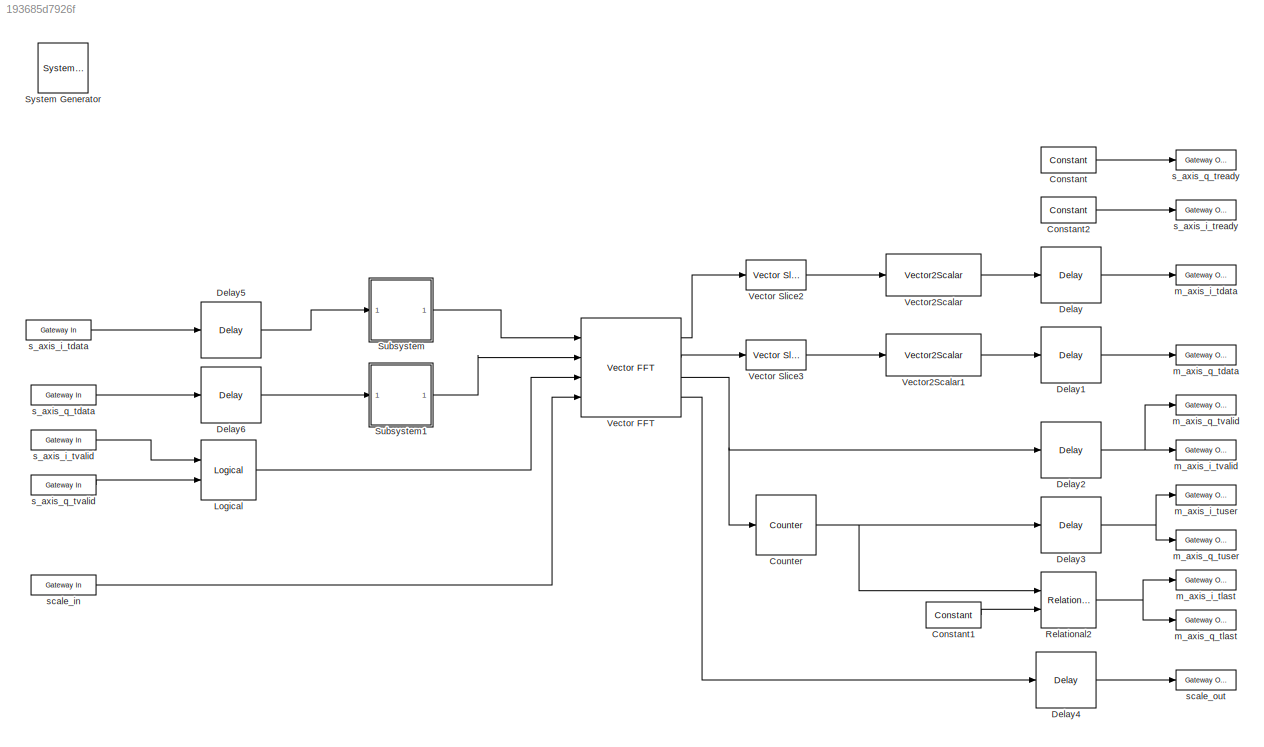
MODEL slx_193685d7926f
KIND model
CONFIG AbsTol = auto
CONFIG EnableMultiTasking = off
CONFIG FixedStep = auto
CONFIG MaxStep = auto
CONFIG MinStep = auto
CONFIG RelTol = 1e-3
CONFIG SampleTimeConstraint = Unconstrained
CONFIG Solver = VariableStepAuto
CONFIG SolverName = VariableStepAuto
CONFIG StartTime = 0.0
CONFIG StopTime = 10.0
BLOCK [Reference]  System Generator  REF=xbsIndex_r4/ System Generator
  AttributesFormatString = System\nGenerator
  Ports = []
  SourceBlock = xbsIndex_r4/ System Generator
  SourceType = Xilinx System Generator Block
  Tag = genX
  UserDataPersistent = on
BLOCK [Reference] Constant  REF=xbsIndex_r4/Constant
  Ports = [0, 1]
  SourceBlock = xbsIndex_r4/Constant
  SourceType = Xilinx Constant Block Block
BLOCK [Reference] Constant1  REF=xbsIndex_r4/Constant
  Ports = [0, 1]
  SourceBlock = xbsIndex_r4/Constant
  SourceType = Xilinx Constant Block Block
BLOCK [Reference] Constant2  REF=xbsIndex_r4/Constant
  Ports = [0, 1]
  SourceBlock = xbsIndex_r4/Constant
  SourceType = Xilinx Constant Block Block
BLOCK [Reference] Counter  REF=xbsIndex_r4/Counter
  Ports = [1, 1]
  SourceBlock = xbsIndex_r4/Counter
  SourceType = Xilinx Counter Block
BLOCK [Reference] Delay  REF=xbsIndex_r4/Delay
  Ports = [1, 1]
  SourceBlock = xbsIndex_r4/Delay
  SourceType = Xilinx Delay Block
BLOCK [Reference] Delay1  REF=xbsIndex_r4/Delay
  Ports = [1, 1]
  SourceBlock = xbsIndex_r4/Delay
  SourceType = Xilinx Delay Block
BLOCK [Reference] Delay2  REF=xbsIndex_r4/Delay
  Ports = [1, 1]
  SourceBlock = xbsIndex_r4/Delay
  SourceType = Xilinx Delay Block
BLOCK [Reference] Delay3  REF=xbsIndex_r4/Delay
  Ports = [1, 1]
  SourceBlock = xbsIndex_r4/Delay
  SourceType = Xilinx Delay Block
BLOCK [Reference] Delay4  REF=xbsIndex_r4/Delay
  Ports = [1, 1]
  SourceBlock = xbsIndex_r4/Delay
  SourceType = Xilinx Delay Block
BLOCK [Reference] Delay5  REF=xbsIndex_r4/Delay
  Ports = [1, 1]
  SourceBlock = xbsIndex_r4/Delay
  SourceType = Xilinx Delay Block
BLOCK [Reference] Delay6  REF=xbsIndex_r4/Delay
  Ports = [1, 1]
  SourceBlock = xbsIndex_r4/Delay
  SourceType = Xilinx Delay Block
BLOCK [Reference] Logical  REF=xbsIndex_r4/Logical
  Ports = [2, 1]
  SourceBlock = xbsIndex_r4/Logical
  SourceType = Xilinx Logical Block Block
BLOCK [Reference] Relational2  REF=xbsIndex_r4/Relational
  Ports = [2, 1]
  SourceBlock = xbsIndex_r4/Relational
  SourceType = Xilinx Arithmetic Relational Operator Block
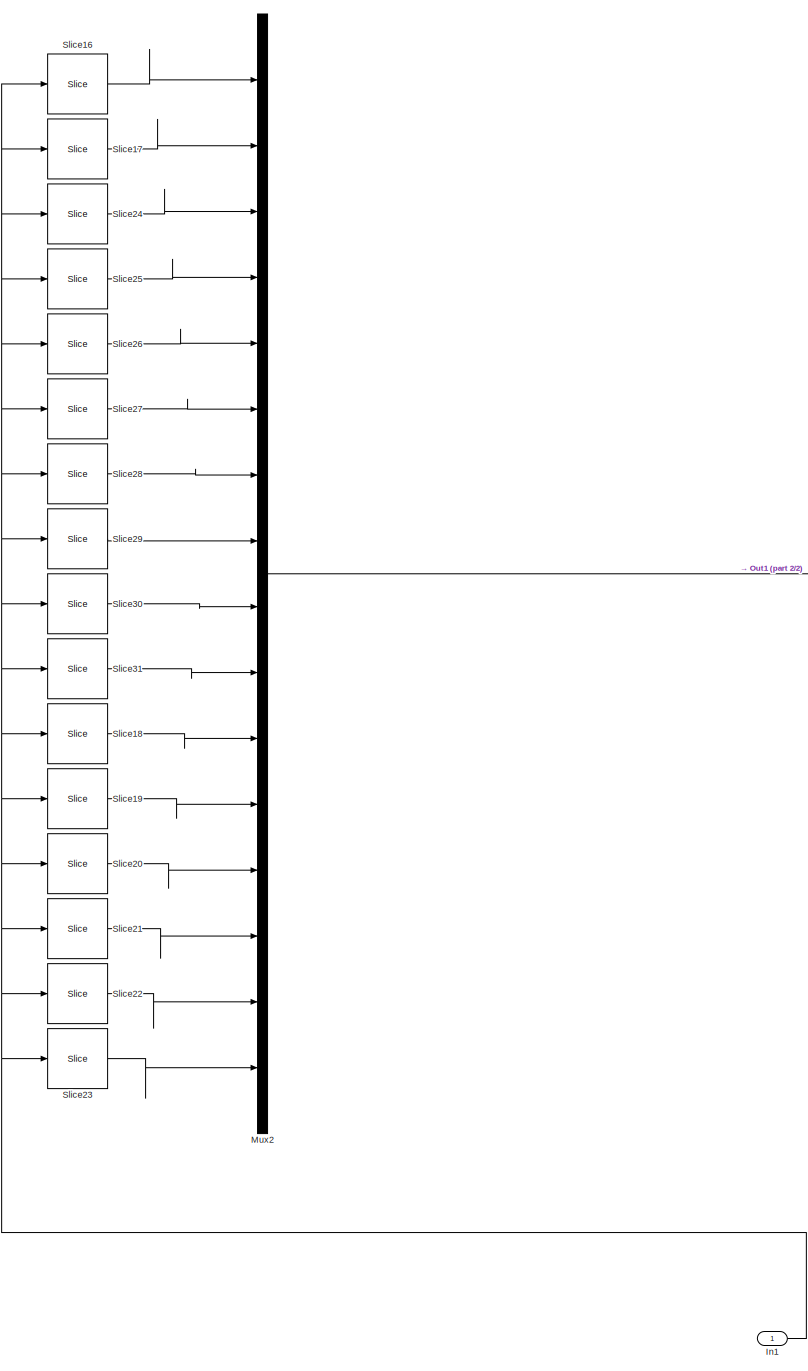
[diagram: Subsystem - part 1/2, center side, full height]
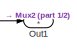
[diagram: Subsystem - part 2/2, bottom right region]
BLOCK [SubSystem] Subsystem
  Ports = [1, 1]
  RequestExecContextInheritance = off
BLOCK [Inport] Subsystem/In1
  IconDisplay = Port number
BLOCK [Mux] Subsystem/Mux2
  DisplayOption = bar
  Inputs = 16
  Ports = [16, 1]
BLOCK [Outport] Subsystem/Out1
  IconDisplay = Port number
BLOCK [Reference] Subsystem/Slice16  REF=xbsIndex_r4/Slice
  Ports = [1, 1]
  SourceBlock = xbsIndex_r4/Slice
  SourceType = Xilinx Bit Slice Extractor Block
BLOCK [Reference] Subsystem/Slice17  REF=xbsIndex_r4/Slice
  Ports = [1, 1]
  SourceBlock = xbsIndex_r4/Slice
  SourceType = Xilinx Bit Slice Extractor Block
BLOCK [Reference] Subsystem/Slice18  REF=xbsIndex_r4/Slice
  Ports = [1, 1]
  SourceBlock = xbsIndex_r4/Slice
  SourceType = Xilinx Bit Slice Extractor Block
BLOCK [Reference] Subsystem/Slice19  REF=xbsIndex_r4/Slice
  Ports = [1, 1]
  SourceBlock = xbsIndex_r4/Slice
  SourceType = Xilinx Bit Slice Extractor Block
BLOCK [Reference] Subsystem/Slice20  REF=xbsIndex_r4/Slice
  Ports = [1, 1]
  SourceBlock = xbsIndex_r4/Slice
  SourceType = Xilinx Bit Slice Extractor Block
BLOCK [Reference] Subsystem/Slice21  REF=xbsIndex_r4/Slice
  Ports = [1, 1]
  SourceBlock = xbsIndex_r4/Slice
  SourceType = Xilinx Bit Slice Extractor Block
BLOCK [Reference] Subsystem/Slice22  REF=xbsIndex_r4/Slice
  Ports = [1, 1]
  SourceBlock = xbsIndex_r4/Slice
  SourceType = Xilinx Bit Slice Extractor Block
BLOCK [Reference] Subsystem/Slice23  REF=xbsIndex_r4/Slice
  Ports = [1, 1]
  SourceBlock = xbsIndex_r4/Slice
  SourceType = Xilinx Bit Slice Extractor Block
BLOCK [Reference] Subsystem/Slice24  REF=xbsIndex_r4/Slice
  Ports = [1, 1]
  SourceBlock = xbsIndex_r4/Slice
  SourceType = Xilinx Bit Slice Extractor Block
BLOCK [Reference] Subsystem/Slice25  REF=xbsIndex_r4/Slice
  Ports = [1, 1]
  SourceBlock = xbsIndex_r4/Slice
  SourceType = Xilinx Bit Slice Extractor Block
BLOCK [Reference] Subsystem/Slice26  REF=xbsIndex_r4/Slice
  Ports = [1, 1]
  SourceBlock = xbsIndex_r4/Slice
  SourceType = Xilinx Bit Slice Extractor Block
BLOCK [Reference] Subsystem/Slice27  REF=xbsIndex_r4/Slice
  Ports = [1, 1]
  SourceBlock = xbsIndex_r4/Slice
  SourceType = Xilinx Bit Slice Extractor Block
BLOCK [Reference] Subsystem/Slice28  REF=xbsIndex_r4/Slice
  Ports = [1, 1]
  SourceBlock = xbsIndex_r4/Slice
  SourceType = Xilinx Bit Slice Extractor Block
BLOCK [Reference] Subsystem/Slice29  REF=xbsIndex_r4/Slice
  Ports = [1, 1]
  SourceBlock = xbsIndex_r4/Slice
  SourceType = Xilinx Bit Slice Extractor Block
BLOCK [Reference] Subsystem/Slice30  REF=xbsIndex_r4/Slice
  Ports = [1, 1]
  SourceBlock = xbsIndex_r4/Slice
  SourceType = Xilinx Bit Slice Extractor Block
BLOCK [Reference] Subsystem/Slice31  REF=xbsIndex_r4/Slice
  Ports = [1, 1]
  SourceBlock = xbsIndex_r4/Slice
  SourceType = Xilinx Bit Slice Extractor Block
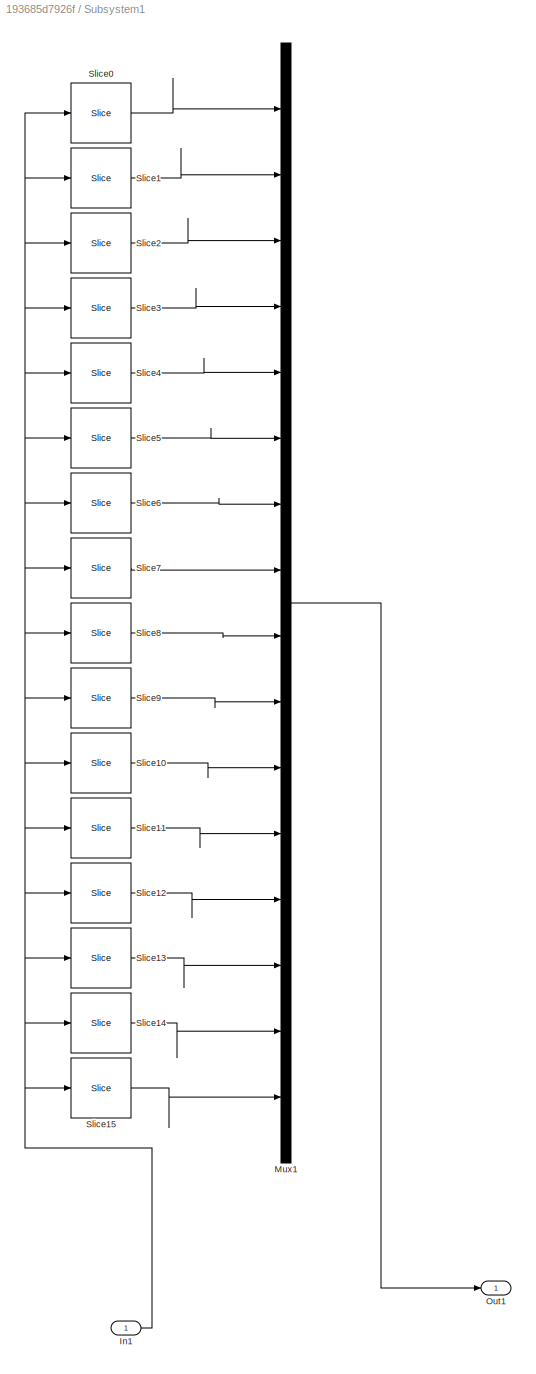
BLOCK [SubSystem] Subsystem1
  Ports = [1, 1]
  RequestExecContextInheritance = off
BLOCK [Inport] Subsystem1/In1
  IconDisplay = Port number
BLOCK [Mux] Subsystem1/Mux1
  DisplayOption = bar
  Inputs = 16
  Ports = [16, 1]
BLOCK [Outport] Subsystem1/Out1
  IconDisplay = Port number
BLOCK [Reference] Subsystem1/Slice0  REF=xbsIndex_r4/Slice
  Ports = [1, 1]
  SourceBlock = xbsIndex_r4/Slice
  SourceType = Xilinx Bit Slice Extractor Block
BLOCK [Reference] Subsystem1/Slice1  REF=xbsIndex_r4/Slice
  Ports = [1, 1]
  SourceBlock = xbsIndex_r4/Slice
  SourceType = Xilinx Bit Slice Extractor Block
BLOCK [Reference] Subsystem1/Slice10  REF=xbsIndex_r4/Slice
  Ports = [1, 1]
  SourceBlock = xbsIndex_r4/Slice
  SourceType = Xilinx Bit Slice Extractor Block
BLOCK [Reference] Subsystem1/Slice11  REF=xbsIndex_r4/Slice
  Ports = [1, 1]
  SourceBlock = xbsIndex_r4/Slice
  SourceType = Xilinx Bit Slice Extractor Block
BLOCK [Reference] Subsystem1/Slice12  REF=xbsIndex_r4/Slice
  Ports = [1, 1]
  SourceBlock = xbsIndex_r4/Slice
  SourceType = Xilinx Bit Slice Extractor Block
BLOCK [Reference] Subsystem1/Slice13  REF=xbsIndex_r4/Slice
  Ports = [1, 1]
  SourceBlock = xbsIndex_r4/Slice
  SourceType = Xilinx Bit Slice Extractor Block
BLOCK [Reference] Subsystem1/Slice14  REF=xbsIndex_r4/Slice
  Ports = [1, 1]
  SourceBlock = xbsIndex_r4/Slice
  SourceType = Xilinx Bit Slice Extractor Block
BLOCK [Reference] Subsystem1/Slice15  REF=xbsIndex_r4/Slice
  Ports = [1, 1]
  SourceBlock = xbsIndex_r4/Slice
  SourceType = Xilinx Bit Slice Extractor Block
BLOCK [Reference] Subsystem1/Slice2  REF=xbsIndex_r4/Slice
  Ports = [1, 1]
  SourceBlock = xbsIndex_r4/Slice
  SourceType = Xilinx Bit Slice Extractor Block
BLOCK [Reference] Subsystem1/Slice3  REF=xbsIndex_r4/Slice
  Ports = [1, 1]
  SourceBlock = xbsIndex_r4/Slice
  SourceType = Xilinx Bit Slice Extractor Block
BLOCK [Reference] Subsystem1/Slice4  REF=xbsIndex_r4/Slice
  Ports = [1, 1]
  SourceBlock = xbsIndex_r4/Slice
  SourceType = Xilinx Bit Slice Extractor Block
BLOCK [Reference] Subsystem1/Slice5  REF=xbsIndex_r4/Slice
  Ports = [1, 1]
  SourceBlock = xbsIndex_r4/Slice
  SourceType = Xilinx Bit Slice Extractor Block
BLOCK [Reference] Subsystem1/Slice6  REF=xbsIndex_r4/Slice
  Ports = [1, 1]
  SourceBlock = xbsIndex_r4/Slice
  SourceType = Xilinx Bit Slice Extractor Block
BLOCK [Reference] Subsystem1/Slice7  REF=xbsIndex_r4/Slice
  Ports = [1, 1]
  SourceBlock = xbsIndex_r4/Slice
  SourceType = Xilinx Bit Slice Extractor Block
BLOCK [Reference] Subsystem1/Slice8  REF=xbsIndex_r4/Slice
  Ports = [1, 1]
  SourceBlock = xbsIndex_r4/Slice
  SourceType = Xilinx Bit Slice Extractor Block
BLOCK [Reference] Subsystem1/Slice9  REF=xbsIndex_r4/Slice
  Ports = [1, 1]
  SourceBlock = xbsIndex_r4/Slice
  SourceType = Xilinx Bit Slice Extractor Block
BLOCK [Reference] Vector FFT  REF=xrbsSSR_Library/Vector FFT
  Ports = [4, 4]
  SourceBlock = xrbsSSR_Library/Vector FFT
  SourceProductName = Xilinx SSR Blockset
  SourceType = Xilinx Vector FFT Block
BLOCK [Reference] Vector Slice2  REF=xrbsSSR_Library/Vector Slice
  Ports = [1, 1]
  SourceBlock = xrbsSSR_Library/Vector Slice
  SourceProductName = Xilinx SSR Blockset
  SourceType = Xilinx Vector Bit Slice Extractor Block
BLOCK [Reference] Vector Slice3  REF=xrbsSSR_Library/Vector Slice
  Ports = [1, 1]
  SourceBlock = xrbsSSR_Library/Vector Slice
  SourceProductName = Xilinx SSR Blockset
  SourceType = Xilinx Vector Bit Slice Extractor Block
BLOCK [Reference] Vector2Scalar  REF=xrbsSSR_Library/Vector2Scalar
  Ports = [1, 1]
  SourceBlock = xrbsSSR_Library/Vector2Scalar
  SourceProductName = Xilinx SSR Blockset
  SourceType = Xilinx Vector2Scalar Block
BLOCK [Reference] Vector2Scalar1  REF=xrbsSSR_Library/Vector2Scalar
  Ports = [1, 1]
  SourceBlock = xrbsSSR_Library/Vector2Scalar
  SourceProductName = Xilinx SSR Blockset
  SourceType = Xilinx Vector2Scalar Block
BLOCK [Reference] m_axis_i_tdata  REF=xbsIndex_r4/Gateway Out
  Ports = [1, 1]
  SourceBlock = xbsIndex_r4/Gateway Out
  SourceType = Xilinx Gateway Out Block
BLOCK [Reference] m_axis_i_tlast  REF=xbsIndex_r4/Gateway Out
  Ports = [1, 1]
  SourceBlock = xbsIndex_r4/Gateway Out
  SourceType = Xilinx Gateway Out Block
BLOCK [Reference] m_axis_i_tuser  REF=xbsIndex_r4/Gateway Out
  Ports = [1, 1]
  SourceBlock = xbsIndex_r4/Gateway Out
  SourceType = Xilinx Gateway Out Block
BLOCK [Reference] m_axis_i_tvalid  REF=xbsIndex_r4/Gateway Out
  Ports = [1, 1]
  SourceBlock = xbsIndex_r4/Gateway Out
  SourceType = Xilinx Gateway Out Block
BLOCK [Reference] m_axis_q_tdata  REF=xbsIndex_r4/Gateway Out
  Ports = [1, 1]
  SourceBlock = xbsIndex_r4/Gateway Out
  SourceType = Xilinx Gateway Out Block
BLOCK [Reference] m_axis_q_tlast  REF=xbsIndex_r4/Gateway Out
  Ports = [1, 1]
  SourceBlock = xbsIndex_r4/Gateway Out
  SourceType = Xilinx Gateway Out Block
BLOCK [Reference] m_axis_q_tuser  REF=xbsIndex_r4/Gateway Out
  Ports = [1, 1]
  SourceBlock = xbsIndex_r4/Gateway Out
  SourceType = Xilinx Gateway Out Block
BLOCK [Reference] m_axis_q_tvalid  REF=xbsIndex_r4/Gateway Out
  Ports = [1, 1]
  SourceBlock = xbsIndex_r4/Gateway Out
  SourceType = Xilinx Gateway Out Block
BLOCK [Reference] s_axis_i_tdata  REF=xbsIndex_r4/Gateway In
  Ports = [1, 1]
  SourceBlock = xbsIndex_r4/Gateway In
  SourceType = Xilinx Gateway In Block
BLOCK [Reference] s_axis_i_tready  REF=xbsIndex_r4/Gateway Out
  Ports = [1, 1]
  SourceBlock = xbsIndex_r4/Gateway Out
  SourceType = Xilinx Gateway Out Block
BLOCK [Reference] s_axis_i_tvalid  REF=xbsIndex_r4/Gateway In
  Ports = [1, 1]
  SourceBlock = xbsIndex_r4/Gateway In
  SourceType = Xilinx Gateway In Block
BLOCK [Reference] s_axis_q_tdata  REF=xbsIndex_r4/Gateway In
  Ports = [1, 1]
  SourceBlock = xbsIndex_r4/Gateway In
  SourceType = Xilinx Gateway In Block
BLOCK [Reference] s_axis_q_tready  REF=xbsIndex_r4/Gateway Out
  Ports = [1, 1]
  SourceBlock = xbsIndex_r4/Gateway Out
  SourceType = Xilinx Gateway Out Block
BLOCK [Reference] s_axis_q_tvalid  REF=xbsIndex_r4/Gateway In
  Ports = [1, 1]
  SourceBlock = xbsIndex_r4/Gateway In
  SourceType = Xilinx Gateway In Block
BLOCK [Reference] scale_in  REF=xbsIndex_r4/Gateway In
  Ports = [1, 1]
  SourceBlock = xbsIndex_r4/Gateway In
  SourceType = Xilinx Gateway In Block
BLOCK [Reference] scale_out  REF=xbsIndex_r4/Gateway Out
  Ports = [1, 1]
  SourceBlock = xbsIndex_r4/Gateway Out
  SourceType = Xilinx Gateway Out Block
LINE Constant1:1 -> Relational2:2
LINE Constant2:1 -> s_axis_i_tready:1
LINE Constant:1 -> s_axis_q_tready:1
NET Counter:1 -> Delay3:1, Relational2:1
LINE Delay1:1 -> m_axis_q_tdata:1
NET Delay2:1 -> m_axis_i_tvalid:1, m_axis_q_tvalid:1
NET Delay3:1 -> m_axis_i_tuser:1, m_axis_q_tuser:1
LINE Delay4:1 -> scale_out:1
LINE Delay5:1 -> Subsystem:1
LINE Delay6:1 -> Subsystem1:1
LINE Delay:1 -> m_axis_i_tdata:1
LINE Logical:1 -> Vector FFT:3
NET Relational2:1 -> m_axis_i_tlast:1, m_axis_q_tlast:1
NET Subsystem/In1:1 -> Subsystem/Slice16:1, Subsystem/Slice17:1, Subsystem/Slice18:1, Subsystem/Slice19:1, Subsystem/Slice20:1, Subsystem/Slice21:1, Subsystem/Slice22:1, Subsystem/Slice23:1, Subsystem/Slice24:1, Subsystem/Slice25:1, Subsystem/Slice26:1, Subsystem/Slice27:1, Subsystem/Slice28:1, Subsystem/Slice29:1, Subsystem/Slice30:1, Subsystem/Slice31:1
LINE Subsystem/Mux2:1 -> Subsystem/Out1:1
LINE Subsystem/Slice16:1 -> Subsystem/Mux2:1
LINE Subsystem/Slice17:1 -> Subsystem/Mux2:2
LINE Subsystem/Slice18:1 -> Subsystem/Mux2:11
LINE Subsystem/Slice19:1 -> Subsystem/Mux2:12
LINE Subsystem/Slice20:1 -> Subsystem/Mux2:13
LINE Subsystem/Slice21:1 -> Subsystem/Mux2:14
LINE Subsystem/Slice22:1 -> Subsystem/Mux2:15
LINE Subsystem/Slice23:1 -> Subsystem/Mux2:16
LINE Subsystem/Slice24:1 -> Subsystem/Mux2:3
LINE Subsystem/Slice25:1 -> Subsystem/Mux2:4
LINE Subsystem/Slice26:1 -> Subsystem/Mux2:5
LINE Subsystem/Slice27:1 -> Subsystem/Mux2:6
LINE Subsystem/Slice28:1 -> Subsystem/Mux2:7
LINE Subsystem/Slice29:1 -> Subsystem/Mux2:8
LINE Subsystem/Slice30:1 -> Subsystem/Mux2:9
LINE Subsystem/Slice31:1 -> Subsystem/Mux2:10
NET Subsystem1/In1:1 -> Subsystem1/Slice0:1, Subsystem1/Slice10:1, Subsystem1/Slice11:1, Subsystem1/Slice12:1, Subsystem1/Slice13:1, Subsystem1/Slice14:1, Subsystem1/Slice15:1, Subsystem1/Slice1:1, Subsystem1/Slice2:1, Subsystem1/Slice3:1, Subsystem1/Slice4:1, Subsystem1/Slice5:1, Subsystem1/Slice6:1, Subsystem1/Slice7:1, Subsystem1/Slice8:1, Subsystem1/Slice9:1
LINE Subsystem1/Mux1:1 -> Subsystem1/Out1:1
LINE Subsystem1/Slice0:1 -> Subsystem1/Mux1:1
LINE Subsystem1/Slice10:1 -> Subsystem1/Mux1:11
LINE Subsystem1/Slice11:1 -> Subsystem1/Mux1:12
LINE Subsystem1/Slice12:1 -> Subsystem1/Mux1:13
LINE Subsystem1/Slice13:1 -> Subsystem1/Mux1:14
LINE Subsystem1/Slice14:1 -> Subsystem1/Mux1:15
LINE Subsystem1/Slice15:1 -> Subsystem1/Mux1:16
LINE Subsystem1/Slice1:1 -> Subsystem1/Mux1:2
LINE Subsystem1/Slice2:1 -> Subsystem1/Mux1:3
LINE Subsystem1/Slice3:1 -> Subsystem1/Mux1:4
LINE Subsystem1/Slice4:1 -> Subsystem1/Mux1:5
LINE Subsystem1/Slice5:1 -> Subsystem1/Mux1:6
LINE Subsystem1/Slice6:1 -> Subsystem1/Mux1:7
LINE Subsystem1/Slice7:1 -> Subsystem1/Mux1:8
LINE Subsystem1/Slice8:1 -> Subsystem1/Mux1:9
LINE Subsystem1/Slice9:1 -> Subsystem1/Mux1:10
LINE Subsystem1:1 -> Vector FFT:2
LINE Subsystem:1 -> Vector FFT:1
LINE Vector FFT:1 -> Vector Slice2:1
LINE Vector FFT:2 -> Vector Slice3:1
NET Vector FFT:3 -> Counter:1, Delay2:1
LINE Vector FFT:4 -> Delay4:1
LINE Vector Slice2:1 -> Vector2Scalar:1
LINE Vector Slice3:1 -> Vector2Scalar1:1
LINE Vector2Scalar1:1 -> Delay1:1
LINE Vector2Scalar:1 -> Delay:1
LINE s_axis_i_tdata:1 -> Delay5:1
LINE s_axis_i_tvalid:1 -> Logical:1
LINE s_axis_q_tdata:1 -> Delay6:1
LINE s_axis_q_tvalid:1 -> Logical:2
LINE scale_in:1 -> Vector FFT:4
note: NET lines group one-source signal fan-out (src -> all destinations, sorted); 1:1 wires keep LINE
